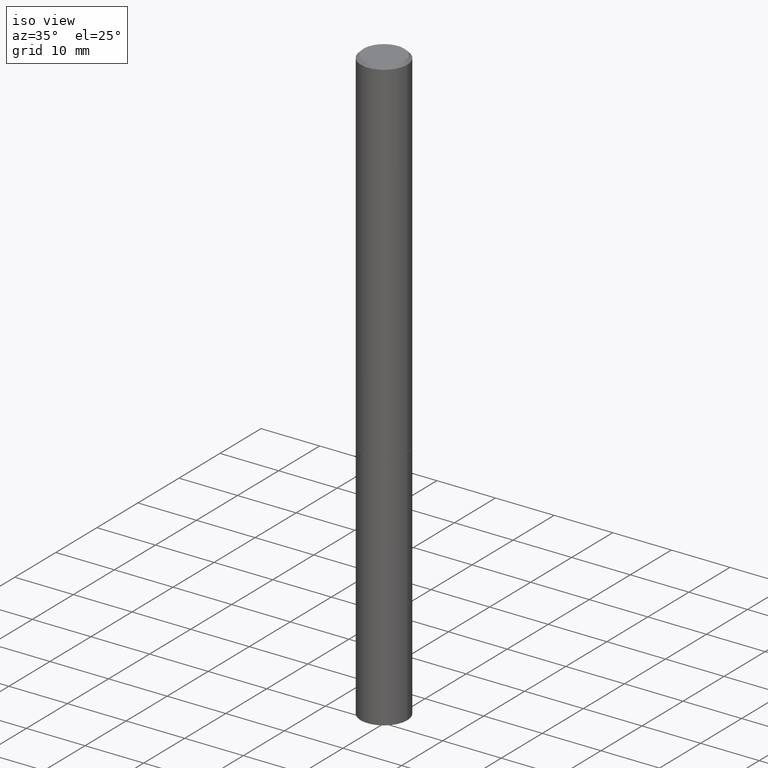
[diagram: clean part render]
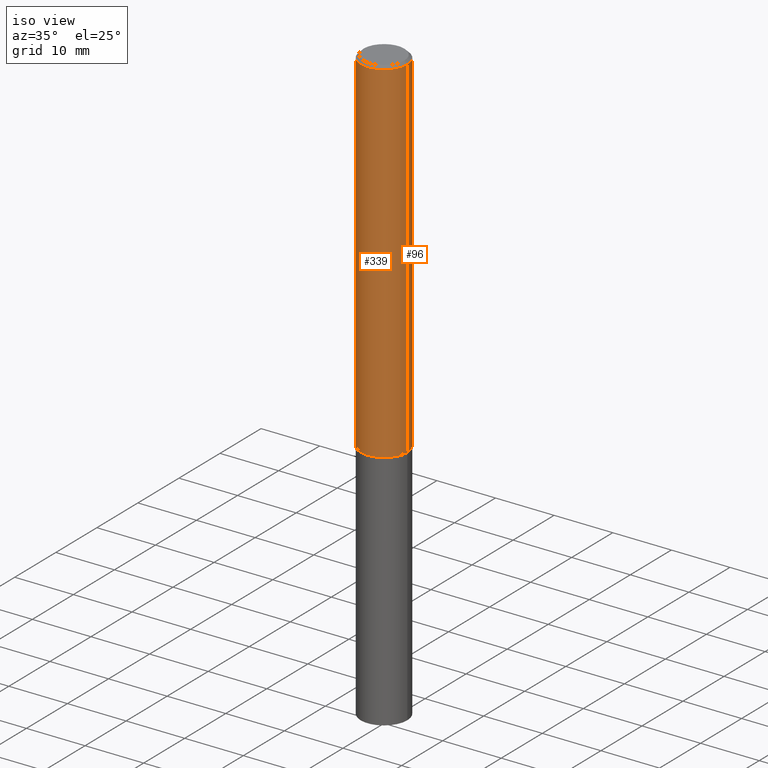
[diagram: same view with one multi-face feature highlighted, each face labeled with its STEP entity id]
A machine part, iso view. The highlighted faces form ONE feature: a constant-radius fillet chain: 2 tangent blend faces with common blend radius 3.9687 mm. The faces share edges in the B-rep.
Their STEP definitions:
[1] entity #96 (Cylinder):
#4 = CARTESIAN_POINT ( 'NONE',  ( -0.1562499999999998612, 1.110223024625155554E-15, -7.685836078523284153E-30 ) ) ;
#8 = CIRCLE ( 'NONE', #156, 0.1562499999999997224 ) ;
#16 = EDGE_CURVE ( 'NONE', #273, #277, #8, .T. ) ;
#18 = CARTESIAN_POINT ( 'NONE',  ( 0.1562499999999998612, -1.091087918388478187E-15, 7.619026212181143371E-30 ) ) ;
#26 = FACE_OUTER_BOUND ( 'NONE', #75, .T. ) ;
#30 = DIRECTION ( 'NONE',  ( 1.000000000000000000, -6.982962677686267499E-15, 0.000000000000000000 ) ) ;
#34 = CARTESIAN_POINT ( 'NONE',  ( 0.1562500000000000000, -9.379864616802105495E-15, -2.373999999999999666 ) ) ;
#41 = DIRECTION ( 'NONE',  ( -2.445468806185136597E-29, 3.491481338843145583E-15, 1.000000000000000000 ) ) ;
#53 = AXIS2_PLACEMENT_3D ( 'NONE', #340, #58, #290 ) ;
#56 = EDGE_CURVE ( 'NONE', #105, #273, #309, .T. ) ;
#58 = DIRECTION ( 'NONE',  ( -2.445468806185136597E-29, 3.491481338843145583E-15, 1.000000000000000000 ) ) ;
#75 = EDGE_LOOP ( 'NONE', ( #227, #244, #100, #289 ) ) ;
#76 = EDGE_CURVE ( 'NONE', #197, #277, #132, .T. ) ;
#96 = ADVANCED_FACE ( 'NONE', ( #26 ), #169, .T. ) ;
#100 = ORIENTED_EDGE ( 'NONE', *, *, #16, .F. ) ;
#105 = VERTEX_POINT ( 'NONE', #34 ) ;
#124 = CARTESIAN_POINT ( 'NONE',  ( 0.1562499999999997224, -1.141782438928662935E-15, -0.02000000000000003511 ) ) ;
#132 = LINE ( 'NONE', #4, #183 ) ;
#138 = DIRECTION ( 'NONE',  ( -2.445468806185136877E-29, 3.491481338843145188E-15, 1.000000000000000000 ) ) ;
#144 = CARTESIAN_POINT ( 'NONE',  ( -0.1562499999999997224, 1.021258291611614298E-15, -0.02000000000000003511 ) ) ;
#151 = VECTOR ( 'NONE', #312, 39.37007874015748143 ) ;
#156 = AXIS2_PLACEMENT_3D ( 'NONE', #165, #261, #30 ) ;
#165 = CARTESIAN_POINT ( 'NONE',  ( 4.890937612370281041E-31, -6.982962677686302702E-17, -0.02000000000000003511 ) ) ;
#169 = CYLINDRICAL_SURFACE ( 'NONE', #53, 0.1562499999999998612 ) ;
#171 = CARTESIAN_POINT ( 'NONE',  ( 5.805542945883513814E-29, -8.288776698413627111E-15, -2.373999999999999666 ) ) ;
#183 = VECTOR ( 'NONE', #138, 39.37007874015748143 ) ;
#197 = VERTEX_POINT ( 'NONE', #345 ) ;
#207 = DIRECTION ( 'NONE',  ( 1.000000000000000000, -6.982962677686262766E-15, 0.000000000000000000 ) ) ;
#227 = ORIENTED_EDGE ( 'NONE', *, *, #335, .T. ) ;
#244 = ORIENTED_EDGE ( 'NONE', *, *, #76, .T. ) ;
#261 = DIRECTION ( 'NONE',  ( -2.445468806185136597E-29, 3.491481338843145583E-15, 1.000000000000000000 ) ) ;
#273 = VERTEX_POINT ( 'NONE', #124 ) ;
#277 = VERTEX_POINT ( 'NONE', #144 ) ;
#278 = AXIS2_PLACEMENT_3D ( 'NONE', #171, #41, #207 ) ;
#286 = CIRCLE ( 'NONE', #278, 0.1562500000000000000 ) ;
#289 = ORIENTED_EDGE ( 'NONE', *, *, #56, .F. ) ;
#290 = DIRECTION ( 'NONE',  ( 1.000000000000000000, -6.982962677686266711E-15, 4.876176775795936353E-29 ) ) ;
#309 = LINE ( 'NONE', #18, #151 ) ;
#312 = DIRECTION ( 'NONE',  ( -2.445468806185136877E-29, 3.491481338843145188E-15, 1.000000000000000000 ) ) ;
#335 = EDGE_CURVE ( 'NONE', #105, #197, #286, .T. ) ;
#340 = CARTESIAN_POINT ( 'NONE',  ( 0.000000000000000000, 0.000000000000000000, 0.000000000000000000 ) ) ;
#345 = CARTESIAN_POINT ( 'NONE',  ( -0.1562500000000000000, -3.069080137970085114E-15, -2.373999999999999666 ) ) ;
[2] entity #339 (Cylinder):
#4 = CARTESIAN_POINT ( 'NONE',  ( -0.1562499999999998612, 1.110223024625155554E-15, -7.685836078523284153E-30 ) ) ;
#9 = DIRECTION ( 'NONE',  ( 1.000000000000000000, -6.982962677686262766E-15, 0.000000000000000000 ) ) ;
#18 = CARTESIAN_POINT ( 'NONE',  ( 0.1562499999999998612, -1.091087918388478187E-15, 7.619026212181143371E-30 ) ) ;
#29 = DIRECTION ( 'NONE',  ( -2.445468806185136597E-29, 3.491481338843145583E-15, 1.000000000000000000 ) ) ;
#34 = CARTESIAN_POINT ( 'NONE',  ( 0.1562500000000000000, -9.379864616802105495E-15, -2.373999999999999666 ) ) ;
#38 = CARTESIAN_POINT ( 'NONE',  ( 0.000000000000000000, 0.000000000000000000, 0.000000000000000000 ) ) ;
#56 = EDGE_CURVE ( 'NONE', #105, #273, #309, .T. ) ;
#76 = EDGE_CURVE ( 'NONE', #197, #277, #132, .T. ) ;
#91 = CIRCLE ( 'NONE', #152, 0.1562500000000000000 ) ;
#94 = AXIS2_PLACEMENT_3D ( 'NONE', #107, #29, #113 ) ;
#105 = VERTEX_POINT ( 'NONE', #34 ) ;
#107 = CARTESIAN_POINT ( 'NONE',  ( 4.890937612370281041E-31, -6.982962677686302702E-17, -0.02000000000000003511 ) ) ;
#113 = DIRECTION ( 'NONE',  ( 1.000000000000000000, -6.982962677686267499E-15, 0.000000000000000000 ) ) ;
#118 = FACE_OUTER_BOUND ( 'NONE', #360, .T. ) ;
#124 = CARTESIAN_POINT ( 'NONE',  ( 0.1562499999999997224, -1.141782438928662935E-15, -0.02000000000000003511 ) ) ;
#132 = LINE ( 'NONE', #4, #183 ) ;
#138 = DIRECTION ( 'NONE',  ( -2.445468806185136877E-29, 3.491481338843145188E-15, 1.000000000000000000 ) ) ;
#144 = CARTESIAN_POINT ( 'NONE',  ( -0.1562499999999997224, 1.021258291611614298E-15, -0.02000000000000003511 ) ) ;
#145 = CIRCLE ( 'NONE', #94, 0.1562499999999997224 ) ;
#151 = VECTOR ( 'NONE', #312, 39.37007874015748143 ) ;
#152 = AXIS2_PLACEMENT_3D ( 'NONE', #225, #166, #9 ) ;
#166 = DIRECTION ( 'NONE',  ( -2.445468806185136597E-29, 3.491481338843145583E-15, 1.000000000000000000 ) ) ;
#167 = EDGE_CURVE ( 'NONE', #277, #273, #145, .T. ) ;
#170 = ORIENTED_EDGE ( 'NONE', *, *, #231, .T. ) ;
#177 = ORIENTED_EDGE ( 'NONE', *, *, #167, .F. ) ;
#183 = VECTOR ( 'NONE', #138, 39.37007874015748143 ) ;
#187 = ORIENTED_EDGE ( 'NONE', *, *, #56, .T. ) ;
#197 = VERTEX_POINT ( 'NONE', #345 ) ;
#204 = CYLINDRICAL_SURFACE ( 'NONE', #366, 0.1562499999999998612 ) ;
#225 = CARTESIAN_POINT ( 'NONE',  ( 5.805542945883513814E-29, -8.288776698413627111E-15, -2.373999999999999666 ) ) ;
#231 = EDGE_CURVE ( 'NONE', #197, #105, #91, .T. ) ;
#236 = DIRECTION ( 'NONE',  ( -2.445468806185136597E-29, 3.491481338843145583E-15, 1.000000000000000000 ) ) ;
#256 = ORIENTED_EDGE ( 'NONE', *, *, #76, .F. ) ;
#273 = VERTEX_POINT ( 'NONE', #124 ) ;
#277 = VERTEX_POINT ( 'NONE', #144 ) ;
#294 = DIRECTION ( 'NONE',  ( 1.000000000000000000, -6.982962677686266711E-15, 4.876176775795936353E-29 ) ) ;
#309 = LINE ( 'NONE', #18, #151 ) ;
#312 = DIRECTION ( 'NONE',  ( -2.445468806185136877E-29, 3.491481338843145188E-15, 1.000000000000000000 ) ) ;
#339 = ADVANCED_FACE ( 'NONE', ( #118 ), #204, .T. ) ;
#345 = CARTESIAN_POINT ( 'NONE',  ( -0.1562500000000000000, -3.069080137970085114E-15, -2.373999999999999666 ) ) ;
#360 = EDGE_LOOP ( 'NONE', ( #256, #170, #187, #177 ) ) ;
#366 = AXIS2_PLACEMENT_3D ( 'NONE', #38, #236, #294 ) ;